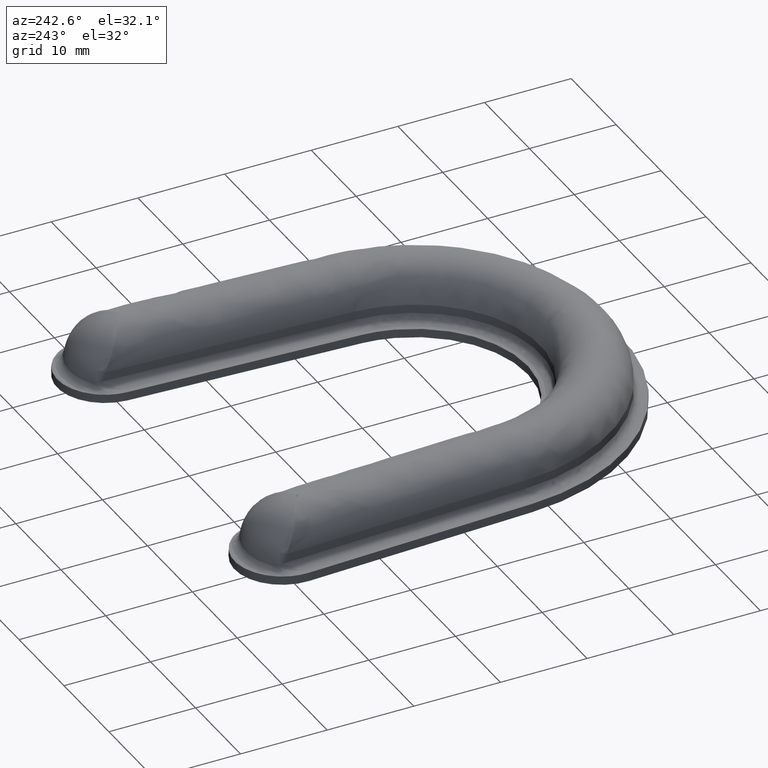
[diagram: clean part render]
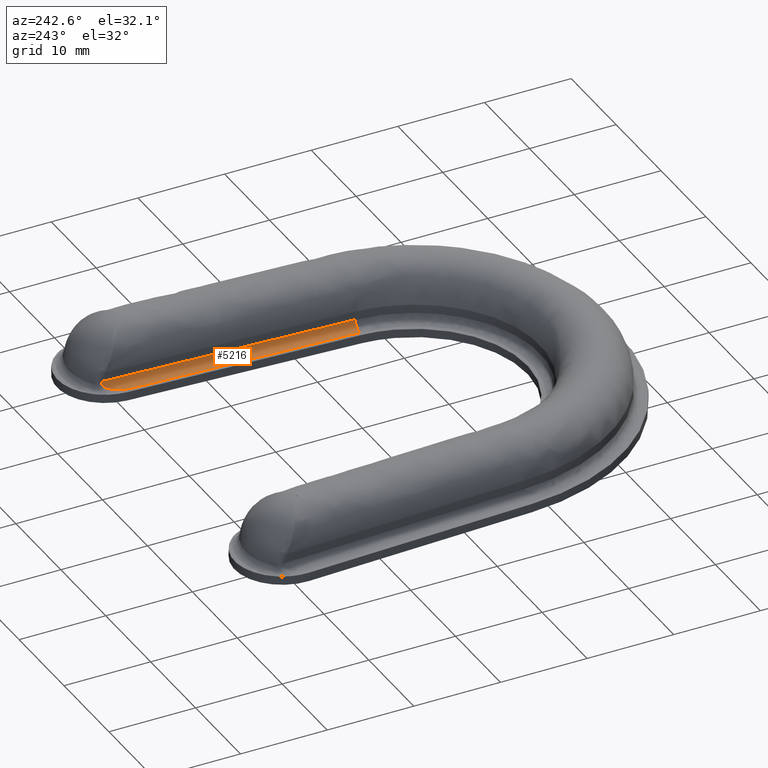
[diagram: same view with one face highlighted and labeled with its STEP entity id]
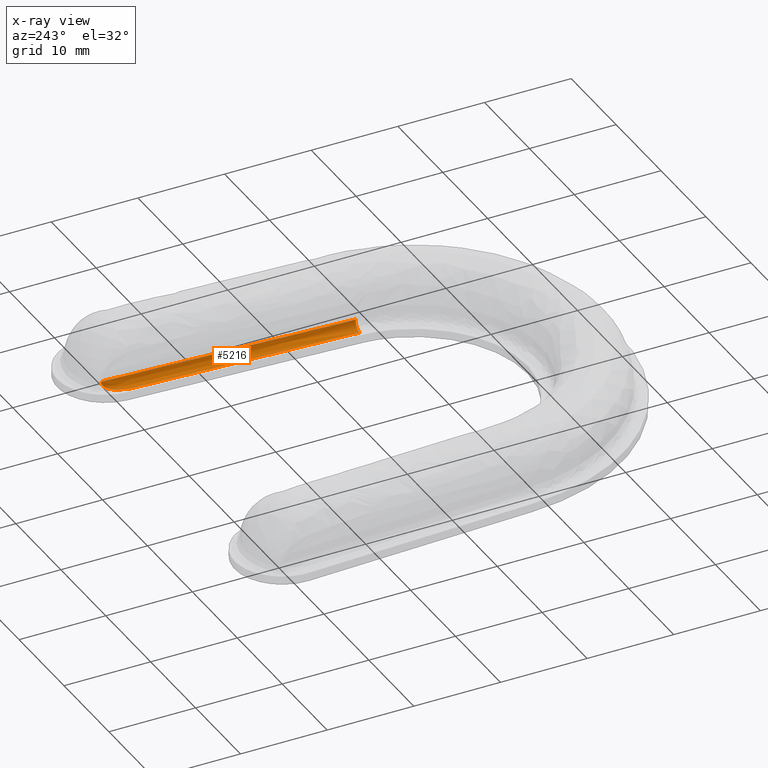
[diagram: x-ray of the same camera — body ghosted, the highlighted face saturated]
A machine part, auxiliary view. The second image highlights one B-rep face of the part: STEP entity #5216.
The next image is the same camera in x-ray: the body ghosted, the highlighted face saturated — about 0% of this face is hidden behind the body in this view.
In plain terms, the highlighted face is a freeform B-spline surface patch.
Its self-contained STEP definition (entity closure, byte-faithful):
#1982=CARTESIAN_POINT('',(14.715857526216601,49.163371898129100,1.000000000000084));
#1983=VERTEX_POINT('',#1982);
#4677=CARTESIAN_POINT('',(15.846210616414449,51.871822800819103,2.000000000000085));
#4678=VERTEX_POINT('',#4677);
#4679=CARTESIAN_POINT('',(15.846210616414449,51.871822800819103,2.000000000000085));
#4680=CARTESIAN_POINT('',(15.846936059147460,51.887028585510507,1.966317173455340));
#4681=CARTESIAN_POINT('',(15.845807754274450,51.898833389398924,1.931729171782465));
#4682=CARTESIAN_POINT('',(15.840773620894190,51.910552913822059,1.878257874552661));
#4683=CARTESIAN_POINT('',(15.838516299275399,51.913462203637451,1.860057049212371));
#4684=CARTESIAN_POINT('',(15.832867112298260,51.916998085059497,1.823760370917015));
#4685=CARTESIAN_POINT('',(15.829482195990369,51.917643132944256,1.805653078730478));
#4686=CARTESIAN_POINT('',(15.817616913450870,51.916153661127510,1.751456682664403));
#4687=CARTESIAN_POINT('',(15.807690558908940,51.910629434206342,1.716706679523390));
#4688=CARTESIAN_POINT('',(15.784563464352640,51.891835405142729,1.650169225020848));
#4689=CARTESIAN_POINT('',(15.771230557625479,51.878407155788700,1.618117557652646));
#4690=CARTESIAN_POINT('',(15.742664602284140,51.845753439498253,1.558408126949570));
#4691=CARTESIAN_POINT('',(15.727556708011660,51.826714368256582,1.530900647493703));
#4692=CARTESIAN_POINT('',(15.696580081297880,51.785054042308843,1.480010756335198));
#4693=CARTESIAN_POINT('',(15.680639793529100,51.762341489826568,1.456502923748862));
#4694=CARTESIAN_POINT('',(15.648135909262500,51.713912218641489,1.412516545514742));
#4695=CARTESIAN_POINT('',(15.631536518546760,51.688124494164391,1.392022391112547));
#4696=CARTESIAN_POINT('',(15.598599430267891,51.635166151912607,1.354267233607813));
#4697=CARTESIAN_POINT('',(15.582166594683370,51.607856543126481,1.336875134220811));
#4698=CARTESIAN_POINT('',(15.533064610661411,51.523896401465542,1.288217849704423));
#4699=CARTESIAN_POINT('',(15.500595424877529,51.465237381731313,1.260426202353500));
#4700=CARTESIAN_POINT('',(15.436513653667150,51.343922060931980,1.211274572999364));
#4701=CARTESIAN_POINT('',(15.405000053686210,51.281420361758158,1.190041476769960));
#4702=CARTESIAN_POINT('',(15.313350684499140,51.091827619448772,1.134281807343262));
#4703=CARTESIAN_POINT('',(15.255565390247551,50.961687102654757,1.107138273702843));
#4704=CARTESIAN_POINT('',(15.173781532562790,50.762324138872387,1.075135674933772));
#4705=CARTESIAN_POINT('',(15.147303534776620,50.695068509083107,1.065964375691535));
#4706=CARTESIAN_POINT('',(15.096180037052440,50.559776197690503,1.050065695575414));
#4707=CARTESIAN_POINT('',(15.071552236610909,50.491796248884057,1.043341534607611));
#4708=CARTESIAN_POINT('',(15.000387550322070,50.286918517667893,1.026040121186998));
#4709=CARTESIAN_POINT('',(14.956564297810891,50.149086019888571,1.018299416668954));
#4710=CARTESIAN_POINT('',(14.875904763943399,49.871146499507482,1.007401269931378));
#4711=CARTESIAN_POINT('',(14.839071270665130,49.731037726993591,1.004262994483859));
#4712=CARTESIAN_POINT('',(14.772285366913399,49.448674460051258,1.000558484640754));
#4713=CARTESIAN_POINT('',(14.742320412867620,49.306324616670203,0.999999999999556));
#4714=CARTESIAN_POINT('',(14.715857526216601,49.163371898129100,1.000000000000084));
#4715=B_SPLINE_CURVE_WITH_KNOTS('',3,(#4679,#4680,#4681,#4682,#4683,#4684,#4685,#4686,#4687,#4688,#4689,#4690,#4691,#4692,#4693,#4694,#4695,#4696,#4697,#4698,#4699,#4700,#4701,#4702,#4703,#4704,#4705,#4706,#4707,#4708,#4709,#4710,#4711,#4712,#4713,#4714),.UNSPECIFIED.,.F.,.U.,(4,2,2,2,2,2,2,2,2,2,2,2,2,2,2,2,2,4),(0.0,0.031250000000000,0.046875000000001,0.062500000000001,0.093750000000001,0.125000000000001,0.156250000000001,0.187500000000001,0.218750000000002,0.250000000000001,0.312500000000004,0.375000000000007,0.500000000000013,0.562500000000013,0.625000000000014,0.750000000000009,0.875000000000005,1.0),.UNSPECIFIED.);
#4716=EDGE_CURVE('',#4678,#1983,#4715,.T.);
#5137=CARTESIAN_POINT('',(14.483526495229439,23.309015005962902,2.000000000000085));
#5138=VERTEX_POINT('',#5137);
#5139=CARTESIAN_POINT('',(13.484662599006700,23.356669143482701,1.000000000000084));
#5140=VERTEX_POINT('',#5139);
#5141=CARTESIAN_POINT('',(14.483526495229430,23.309015005962902,2.000000000000085));
#5142=CARTESIAN_POINT('',(14.483526495229428,23.309015005962895,1.000000000000085));
#5143=CARTESIAN_POINT('',(13.484662599006700,23.356669143482701,1.000000000000085));
#5151=(BOUNDED_CURVE()B_SPLINE_CURVE(2,(#5141,#5142,#5143),.UNSPECIFIED.,.F.,.U.)CURVE()GEOMETRIC_REPRESENTATION_ITEM()QUASI_UNIFORM_CURVE()RATIONAL_B_SPLINE_CURVE((1.0,0.707106781186548,1.0))REPRESENTATION_ITEM(''));
#5152=EDGE_CURVE('',#5138,#5140,#5151,.T.);
#5188=CARTESIAN_POINT('',(15.881455946905820,52.630562092687967,2.043619387365414));
#5189=CARTESIAN_POINT('',(14.447603794410959,22.576022818878890,2.043619387365414));
#5190=CARTESIAN_POINT('',(15.930286694883428,52.628232458802792,0.923939311367843));
#5191=CARTESIAN_POINT('',(14.496434542388572,22.573693184993715,0.923939311367840));
#5192=CARTESIAN_POINT('',(14.813563873966865,52.681509449873069,1.002457113137138));
#5193=CARTESIAN_POINT('',(13.379711721472010,22.626970176063967,1.002457113137134));
#5201=(BOUNDED_SURFACE()B_SPLINE_SURFACE(1,2,((#5188,#5190,#5192),(#5189,#5191,#5193)),.UNSPECIFIED.,.F.,.F.,.U.)B_SPLINE_SURFACE_WITH_KNOTS((2,2),(3,3),(0.0,30.088723185873938),(0.0,0.994386845294572),.UNSPECIFIED.)GEOMETRIC_REPRESENTATION_ITEM()RATIONAL_B_SPLINE_SURFACE(((1.0,0.664513814079613,0.996233728273790),(1.0,0.664513814079613,0.996233728273790)))REPRESENTATION_ITEM('')SURFACE());
#5202=CARTESIAN_POINT('',(15.846210616414449,51.871822800819103,2.000000000000085));
#5203=CARTESIAN_POINT('',(14.483526495229439,23.309015005962902,2.000000000000085));
#5204=QUASI_UNIFORM_CURVE('',1,(#5202,#5203),.UNSPECIFIED.,.F.,.U.);
#5205=EDGE_CURVE('',#4678,#5138,#5204,.T.);
#5206=ORIENTED_EDGE('',*,*,#5205,.F.);
#5207=ORIENTED_EDGE('',*,*,#4716,.T.);
#5208=CARTESIAN_POINT('',(13.484662599006700,23.356669143482701,1.000000000000084));
#5209=CARTESIAN_POINT('',(14.715857526216601,49.163371898129100,1.000000000000084));
#5210=QUASI_UNIFORM_CURVE('',1,(#5208,#5209),.UNSPECIFIED.,.F.,.U.);
#5211=EDGE_CURVE('',#5140,#1983,#5210,.T.);
#5212=ORIENTED_EDGE('',*,*,#5211,.F.);
#5213=ORIENTED_EDGE('',*,*,#5152,.F.);
#5214=EDGE_LOOP('',(#5206,#5207,#5212,#5213));
#5215=FACE_OUTER_BOUND('',#5214,.T.);
#5216=ADVANCED_FACE('',(#5215),#5201,.F.);